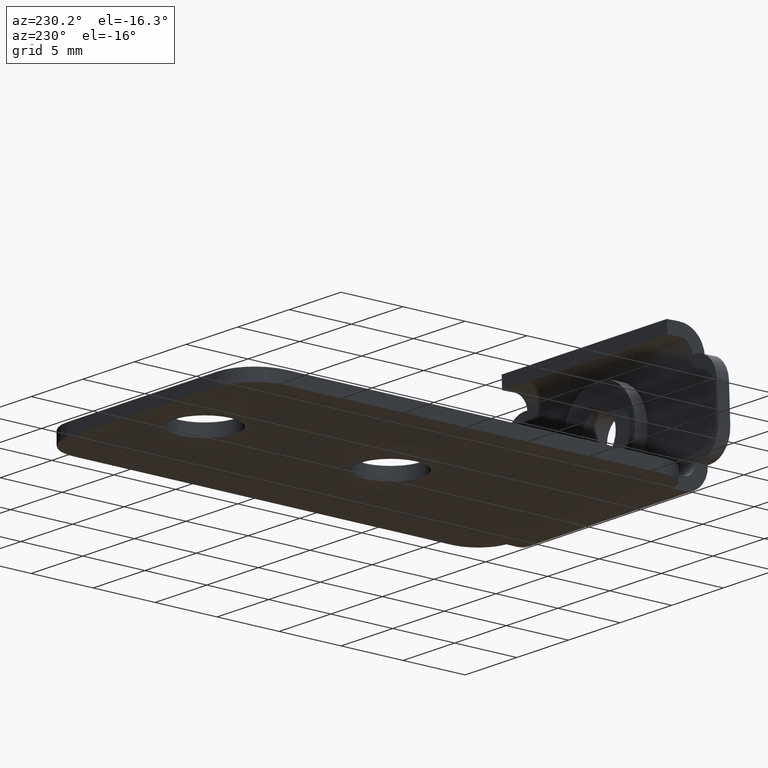
[diagram: clean part render]
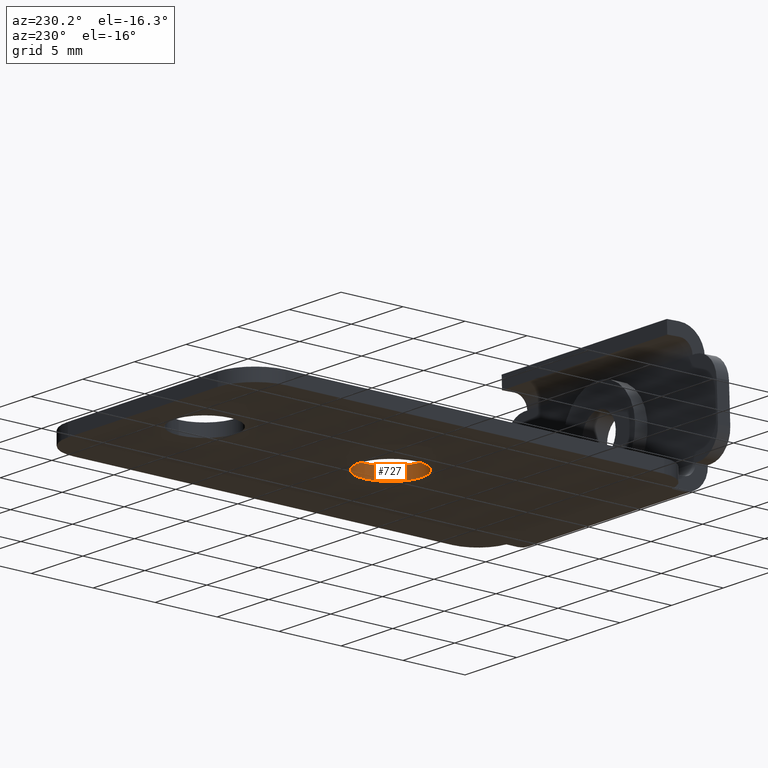
[diagram: same view with one face highlighted and labeled with its STEP entity id]
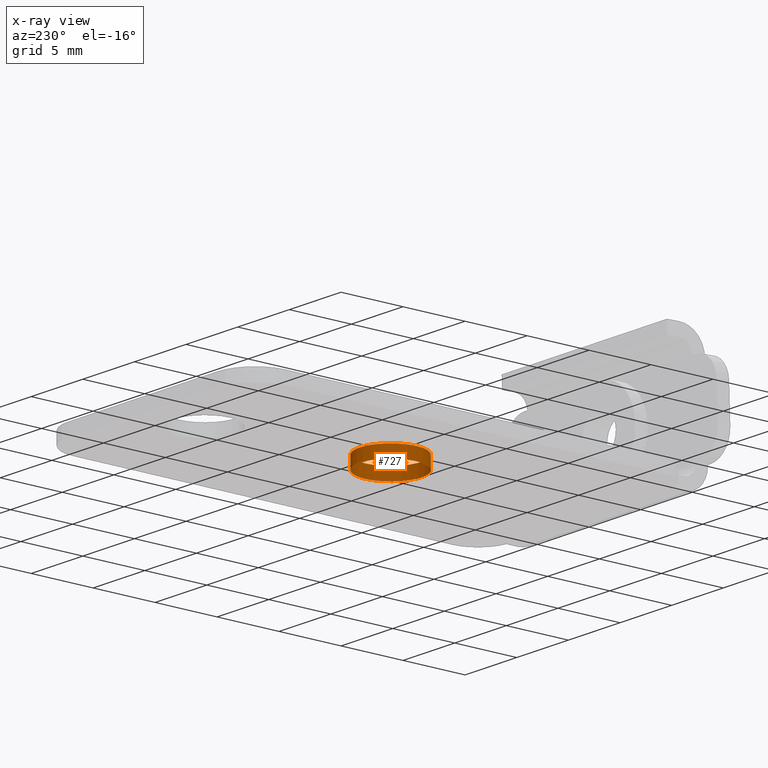
[diagram: x-ray of the same camera — body ghosted, the highlighted face saturated]
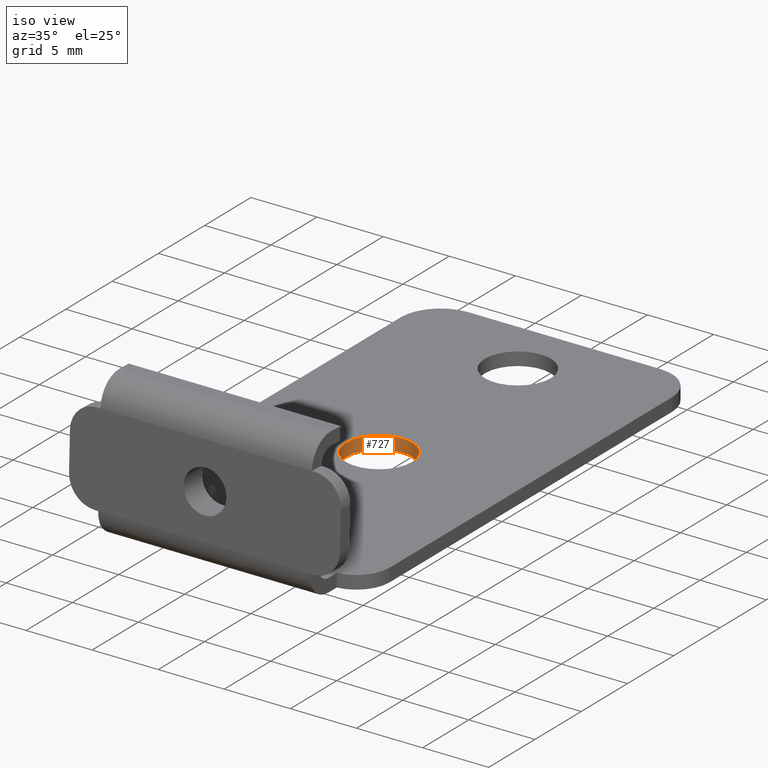
[diagram: same view with one face highlighted and labeled with its STEP entity id]
A machine part, auxiliary view. The second image highlights one B-rep face of the part: STEP entity #727.
The next image is the same camera in x-ray: the body ghosted, the highlighted face saturated — about 0% of this face is hidden behind the body in this view.
A second angle (iso view) of the same face is appended — the face is thin or edge-on in the first view.
In plain terms, the highlighted cylindrical surface (bore or boss wall) has radius 2.5 mm, axis along (0, 0, -1).
Its self-contained STEP definition (entity closure, byte-faithful):
#79=FACE_OUTER_BOUND('',#125,.T.);
#125=EDGE_LOOP('',(#628,#629,#630,#631));
#193=LINE('',#1237,#261);
#261=VECTOR('',#1016,2.5);
#301=CIRCLE('',#819,2.5);
#302=CIRCLE('',#821,2.5);
#361=VERTEX_POINT('',#1232);
#362=VERTEX_POINT('',#1235);
#454=EDGE_CURVE('',#361,#361,#301,.T.);
#455=EDGE_CURVE('',#362,#362,#302,.T.);
#456=EDGE_CURVE('',#362,#361,#193,.T.);
#628=ORIENTED_EDGE('',*,*,#455,.F.);
#629=ORIENTED_EDGE('',*,*,#456,.T.);
#630=ORIENTED_EDGE('',*,*,#454,.F.);
#631=ORIENTED_EDGE('',*,*,#456,.F.);
#690=CYLINDRICAL_SURFACE('',#820,2.5);
#727=ADVANCED_FACE('',(#79),#690,.F.);
#819=AXIS2_PLACEMENT_3D('',#1233,#1010,#1011);
#820=AXIS2_PLACEMENT_3D('',#1234,#1012,#1013);
#821=AXIS2_PLACEMENT_3D('',#1236,#1014,#1015);
#1010=DIRECTION('center_axis',(0.,0.,1.));
#1011=DIRECTION('ref_axis',(-1.,0.,0.));
#1012=DIRECTION('center_axis',(0.,0.,-1.));
#1013=DIRECTION('ref_axis',(-1.,0.,0.));
#1014=DIRECTION('center_axis',(0.,0.,-1.));
#1015=DIRECTION('ref_axis',(-1.,0.,0.));
#1016=DIRECTION('',(0.,0.,-1.));
#1232=CARTESIAN_POINT('',(2.5,16.,-1.));
#1233=CARTESIAN_POINT('Origin',(0.,16.,-1.));
#1234=CARTESIAN_POINT('Origin',(0.,16.,0.));
#1235=CARTESIAN_POINT('',(2.5,16.,0.));
#1236=CARTESIAN_POINT('Origin',(0.,16.,0.));
#1237=CARTESIAN_POINT('',(2.5,16.,0.));